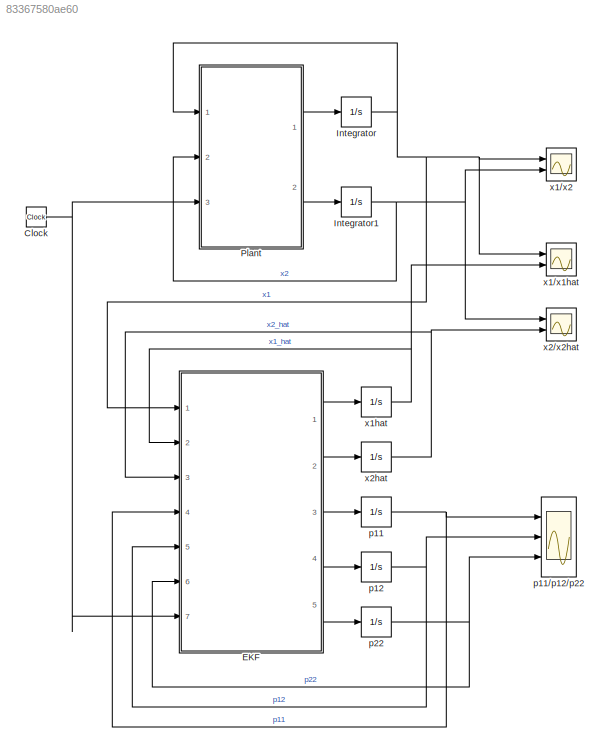
MODEL slx_83367580ae60
KIND model
CONFIG AbsTol = auto
CONFIG EnableMultiTasking = off
CONFIG FixedStep = auto
CONFIG MaxStep = auto
CONFIG MinStep = auto
CONFIG RelTol = 1e-3
CONFIG SampleTimeConstraint = Unconstrained
CONFIG SolverName = VariableStepAuto
CONFIG StartTime = 0.0
CONFIG StopTime = 8
BLOCK [Clock] Clock
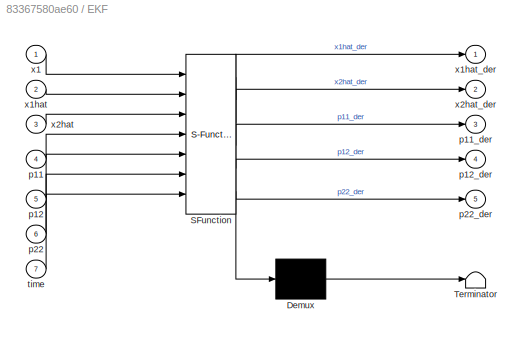
BLOCK [SubSystem] EKF
  ErrorFcn = Stateflow.Translate.translate
  PermitHierarchicalResolution = ExplicitOnly
  Ports = [7, 5]
  RequestExecContextInheritance = off
  SFBlockType = MATLAB Function
  TreatAsAtomicUnit = on
BLOCK [Demux] EKF/ Demux 
  Outputs = 1
  Ports = [1, 1]
BLOCK [S-Function] EKF/ SFunction 
  EnableBusSupport = on
  FunctionName = sf_sfun
  PortCounts = [7 6]
  Ports = [7, 6]
  SFcnIsStateOwnerBlock = off
  SFunctionDeploymentMode = off
  Tag = Stateflow S-Function 1
BLOCK [Terminator] EKF/ Terminator 
BLOCK [Inport] EKF/p11
  Port = 4
BLOCK [Outport] EKF/p11_der
  Port = 3
BLOCK [Inport] EKF/p12
  Port = 5
BLOCK [Outport] EKF/p12_der
  Port = 4
BLOCK [Inport] EKF/p22
  Port = 6
BLOCK [Outport] EKF/p22_der
  Port = 5
BLOCK [Inport] EKF/time
  Port = 7
BLOCK [Inport] EKF/x1
BLOCK [Inport] EKF/x1hat
  Port = 2
BLOCK [Outport] EKF/x1hat_der
BLOCK [Inport] EKF/x2hat
  Port = 3
BLOCK [Outport] EKF/x2hat_der
  Port = 2
BLOCK [Integrator] Integrator
  Ports = [1, 1]
BLOCK [Integrator] Integrator1
  Ports = [1, 1]
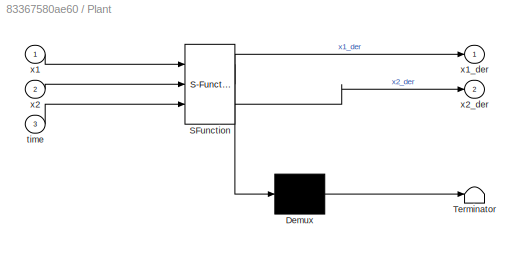
BLOCK [SubSystem] Plant
  ErrorFcn = Stateflow.Translate.translate
  PermitHierarchicalResolution = ExplicitOnly
  Ports = [3, 2]
  RequestExecContextInheritance = off
  SFBlockType = MATLAB Function
  TreatAsAtomicUnit = on
BLOCK [Demux] Plant/ Demux 
  Outputs = 1
  Ports = [1, 1]
BLOCK [S-Function] Plant/ SFunction 
  EnableBusSupport = on
  FunctionName = sf_sfun
  PortCounts = [3 3]
  Ports = [3, 3]
  SFcnIsStateOwnerBlock = off
  SFunctionDeploymentMode = off
  Tag = Stateflow S-Function 2
BLOCK [Terminator] Plant/ Terminator 
BLOCK [Inport] Plant/time
  Port = 3
BLOCK [Inport] Plant/x1
BLOCK [Outport] Plant/x1_der
BLOCK [Inport] Plant/x2
  Port = 2
BLOCK [Outport] Plant/x2_der
  Port = 2
BLOCK [Integrator] p11
  Ports = [1, 1]
BLOCK [Scope] p11//p12//p22
  Floating = off
  NumInputPorts = 3
  Ports = [3]
  ScopeSpecificationString = Simulink.scopes.TimeScopeBlockCfg('CurrentConfiguration', extmgr.ConfigurationSet(extmgr.Configuration('Core','General UI',true),extmgr.Configuration('Core','Source UI',true),extmgr.Configuration('Sources','WiredSimulink',true,'SampleTime','1e-4','DataLoggingVariableName','ScopeData3'),extmgr.Configuration('Visuals','Time Domain',true,'SerializedDisplays',{struct('MinYLimReal','-0.29446','MaxYLimR...<+1801ch>
BLOCK [Integrator] p12
  Ports = [1, 1]
BLOCK [Integrator] p22
  Ports = [1, 1]
BLOCK [Scope] x1//x1hat
  Floating = off
  NumInputPorts = 2
  Ports = [2]
  ScopeSpecificationString = Simulink.scopes.TimeScopeBlockCfg('CurrentConfiguration', extmgr.ConfigurationSet(extmgr.Configuration('Core','General UI',true),extmgr.Configuration('Core','Source UI',true),extmgr.Configuration('Sources','WiredSimulink',true,'SampleTime','1e-4','DataLoggingVariableName','ScopeData1'),extmgr.Configuration('Visuals','Time Domain',true,'SerializedDisplays',{struct('MinYLimReal','-0.17065','MaxYLimR...<+1637ch>
BLOCK [Scope] x1//x2
  Floating = off
  NumInputPorts = 2
  Ports = [2]
  ScopeSpecificationString = Simulink.scopes.TimeScopeBlockCfg('CurrentConfiguration', extmgr.ConfigurationSet(extmgr.Configuration('Core','General UI',true),extmgr.Configuration('Core','Source UI',true),extmgr.Configuration('Sources','WiredSimulink',true,'SampleTime','1e-4'),extmgr.Configuration('Visuals','Time Domain',true,'SerializedDisplays',{struct('MinYLimReal','-0.11288','MaxYLimReal','0.10106','YLabelReal','','MinYLim...<+1564ch>
BLOCK [Integrator] x1hat
  InitialCondition = 1
  Ports = [1, 1]
BLOCK [Scope] x2//x2hat
  Floating = off
  NumInputPorts = 2
  Ports = [2]
  ScopeSpecificationString = Simulink.scopes.TimeScopeBlockCfg('CurrentConfiguration', extmgr.ConfigurationSet(extmgr.Configuration('Core','General UI',true),extmgr.Configuration('Core','Source UI',true),extmgr.Configuration('Sources','WiredSimulink',true,'SampleTime','1e-4','DataLoggingVariableName','ScopeData2'),extmgr.Configuration('Visuals','Time Domain',true,'SerializedDisplays',{struct('MinYLimReal','-1.13496','MaxYLimR...<+1662ch>
BLOCK [Integrator] x2hat
  InitialCondition = -1
  Ports = [1, 1]
NET Clock:1 -> EKF:7, Plant:3
LINE EKF:1 -> x1hat:1
LINE EKF:2 -> x2hat:1
LINE EKF:3 -> p11:1
LINE EKF:4 -> p12:1
LINE EKF:5 -> p22:1
NET Integrator1:1 -> Plant:2, x1//x2:2, x2//x2hat:1
NET Integrator:1 -> EKF:1, Plant:1, x1//x1hat:1, x1//x2:1
LINE Plant:1 -> Integrator:1
LINE Plant:2 -> Integrator1:1
NET p11:1 -> EKF:4, p11//p12//p22:1
NET p12:1 -> EKF:5, p11//p12//p22:2
NET p22:1 -> EKF:6, p11//p12//p22:3
NET x1hat:1 -> EKF:2, x1//x1hat:2
NET x2hat:1 -> EKF:3, x2//x2hat:2
note: NET lines group one-source signal fan-out (src -> all destinations, sorted); 1:1 wires keep LINE
CHART EKF states=1 transitions=1
  STATE_LABEL 'eML_blk_kernel()'
  STATE_LABEL 'SCRIPT:\nfunction [x1hat_der, x2hat_der, p11_der, p12_der, p22_der] = ...\n    EKF(x1, x1hat, x2hat, p11, p12, p22, time)\n\nx1hat_der = x2hat + p11*(x1-x1hat);\nx2hat_der = -x1hat - 2*x2hat + (0.25*x1hat^2*x2hat + 0.2*sin(2*time)) + ...\n    p12*(x1-x1hat);\np11_der = 2*p12+1-p11^2;\np12_der = p11*(-1+0.5*x1hat*x2hat)+p12*(-2+0.25*x1hat^2)+p22-p11*p12;\np22_der = 2*p12*(-1+0.5*x1hat*x2hat)+2*p22*(-2+0.25*...<+18ch>'
CHART Plant states=1 transitions=1
  STATE_LABEL 'eML_blk_kernel()'
  STATE_LABEL 'SCRIPT:\nfunction [x1_der, x2_der] = plant(x1, x2, time)\nx1_der = x2;\nx2_der = -x1-2*x2+(0.25*x1^2*x2+0.2*sin(2*time));\n'
CHART  states=0 transitions=0
CHART  states=0 transitions=0
